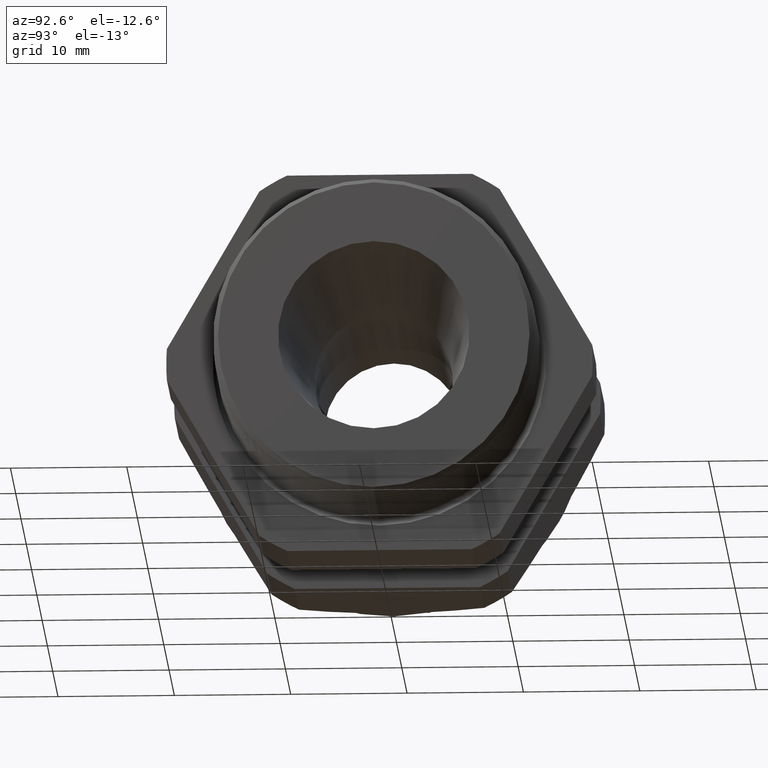
[diagram: clean part render]
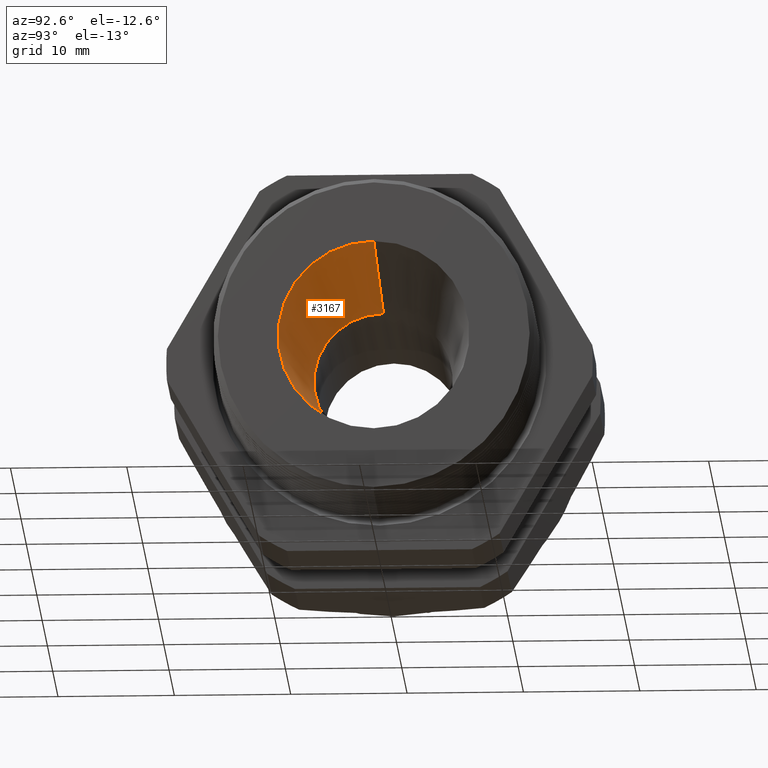
[diagram: same view with one face highlighted and labeled with its STEP entity id]
A machine part, auxiliary view. The second image highlights one B-rep face of the part: STEP entity #3167.
In plain terms, the highlighted conical surface has half-angle 7 deg.
Its self-contained STEP definition (entity closure, byte-faithful):
#224 = ORIENTED_EDGE ( 'NONE', *, *, #3502, .F. ) ;
#225 = ORIENTED_EDGE ( 'NONE', *, *, #226, .T. ) ;
#226 = EDGE_CURVE ( 'NONE', #3517, #227, #673, .T. ) ;
#227 = VERTEX_POINT ( 'NONE', #727 ) ;
#228 = ORIENTED_EDGE ( 'NONE', *, *, #229, .T. ) ;
#229 = EDGE_CURVE ( 'NONE', #227, #230, #726, .T. ) ;
#230 = VERTEX_POINT ( 'NONE', #721 ) ;
#231 = ORIENTED_EDGE ( 'NONE', *, *, #232, .F. ) ;
#232 = EDGE_CURVE ( 'NONE', #3503, #230, #720, .T. ) ;
#673 = LINE ( 'NONE', #730, #729 ) ;
#717 = DIRECTION ( 'NONE',  ( 0.9925461516413227600, 0.0000000000000000000, -0.1218693434051409100 ) ) ;
#718 = VECTOR ( 'NONE', #717, 39.37007874015748900 ) ;
#719 = CARTESIAN_POINT ( 'NONE',  ( -0.6052755905511809600, 0.0000000000000000000, -0.2349999999999999900 ) ) ;
#720 = LINE ( 'NONE', #719, #718 ) ;
#721 = CARTESIAN_POINT ( 'NONE',  ( 0.1199999999999999500, 0.0000000000000000000, -0.3240526449194167100 ) ) ;
#722 = DIRECTION ( 'NONE',  ( 0.0000000000000000000, 0.0000000000000000000, -1.000000000000000000 ) ) ;
#723 = DIRECTION ( 'NONE',  ( 1.000000000000000000, 0.0000000000000000000, 0.0000000000000000000 ) ) ;
#724 = CARTESIAN_POINT ( 'NONE',  ( 0.1199999999999999500, 0.0000000000000000000, 0.0000000000000000000 ) ) ;
#725 = AXIS2_PLACEMENT_3D ( 'NONE', #724, #723, #722 ) ;
#726 = CIRCLE ( 'NONE', #725, 0.3240526449194167100 ) ;
#727 = CARTESIAN_POINT ( 'NONE',  ( 0.1199999999999999500, 3.968500343557975000E-017, 0.3240526449194167100 ) ) ;
#728 = DIRECTION ( 'NONE',  ( 0.9925461516413227600, 1.492469013152954000E-017, 0.1218693434051409100 ) ) ;
#729 = VECTOR ( 'NONE', #728, 39.37007874015748900 ) ;
#730 = CARTESIAN_POINT ( 'NONE',  ( -0.6052755905511809600, 2.877919977996279800E-017, 0.2349999999999999900 ) ) ;
#1386 = DIRECTION ( 'NONE',  ( 0.0000000000000000000, 0.0000000000000000000, -1.000000000000000000 ) ) ;
#1387 = DIRECTION ( 'NONE',  ( 1.000000000000000000, 0.0000000000000000000, 0.0000000000000000000 ) ) ;
#1388 = AXIS2_PLACEMENT_3D ( 'NONE', #1394, #1387, #1386 ) ;
#1389 = CONICAL_SURFACE ( 'NONE', #1388, 0.2349999999999999900, 0.1221730476395964700 ) ;
#1390 = FACE_OUTER_BOUND ( 'NONE', #3176, .T. ) ;
#1394 = CARTESIAN_POINT ( 'NONE',  ( -0.6052755905511809600, 0.0000000000000000000, 0.0000000000000000000 ) ) ;
#1884 = CARTESIAN_POINT ( 'NONE',  ( -0.6052755905511809600, 0.0000000000000000000, -0.2349999999999999900 ) ) ;
#1885 = DIRECTION ( 'NONE',  ( 0.0000000000000000000, 0.0000000000000000000, -1.000000000000000000 ) ) ;
#1886 = DIRECTION ( 'NONE',  ( 1.000000000000000000, 0.0000000000000000000, 0.0000000000000000000 ) ) ;
#1887 = AXIS2_PLACEMENT_3D ( 'NONE', #1893, #1886, #1885 ) ;
#1888 = CIRCLE ( 'NONE', #1887, 0.2349999999999999900 ) ;
#1893 = CARTESIAN_POINT ( 'NONE',  ( -0.6052755905511809600, 0.0000000000000000000, 0.0000000000000000000 ) ) ;
#1916 = CARTESIAN_POINT ( 'NONE',  ( -0.6052755905511809600, 3.423210160777128000E-017, 0.2349999999999999900 ) ) ;
#3167 = ADVANCED_FACE ( 'NONE', ( #1390 ), #1389, .F. ) ;
#3176 = EDGE_LOOP ( 'NONE', ( #224, #225, #228, #231 ) ) ;
#3502 = EDGE_CURVE ( 'NONE', #3517, #3503, #1888, .T. ) ;
#3503 = VERTEX_POINT ( 'NONE', #1884 ) ;
#3517 = VERTEX_POINT ( 'NONE', #1916 ) ;